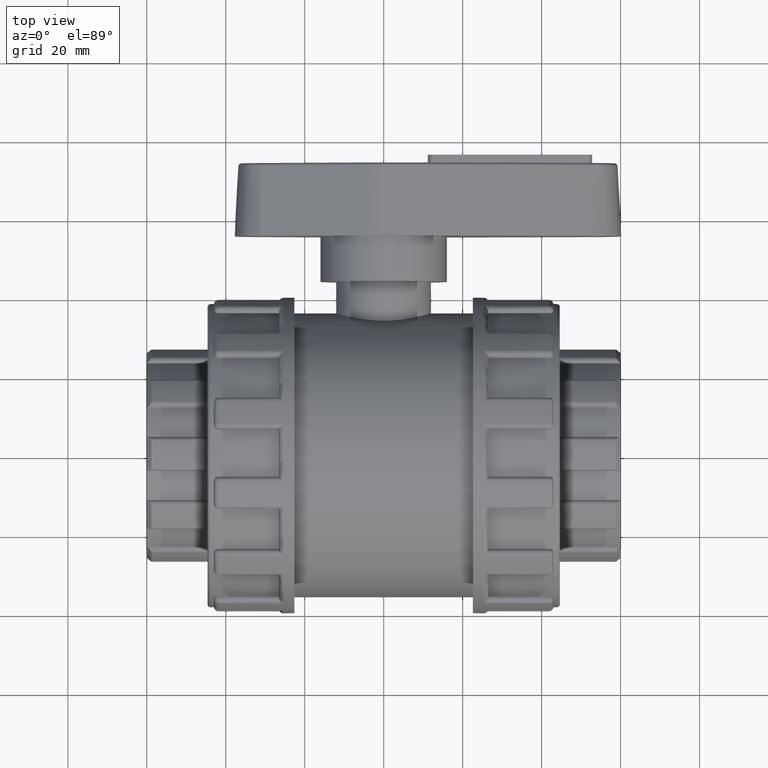
[diagram: clean part render]
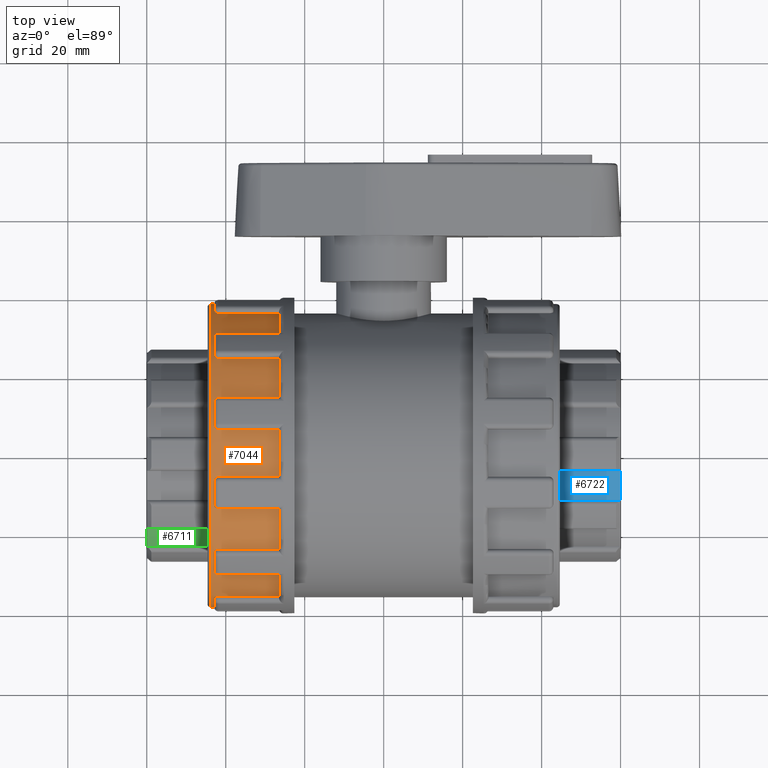
[diagram: same view with three faces highlighted in distinct colors, each labeled with its STEP entity id]
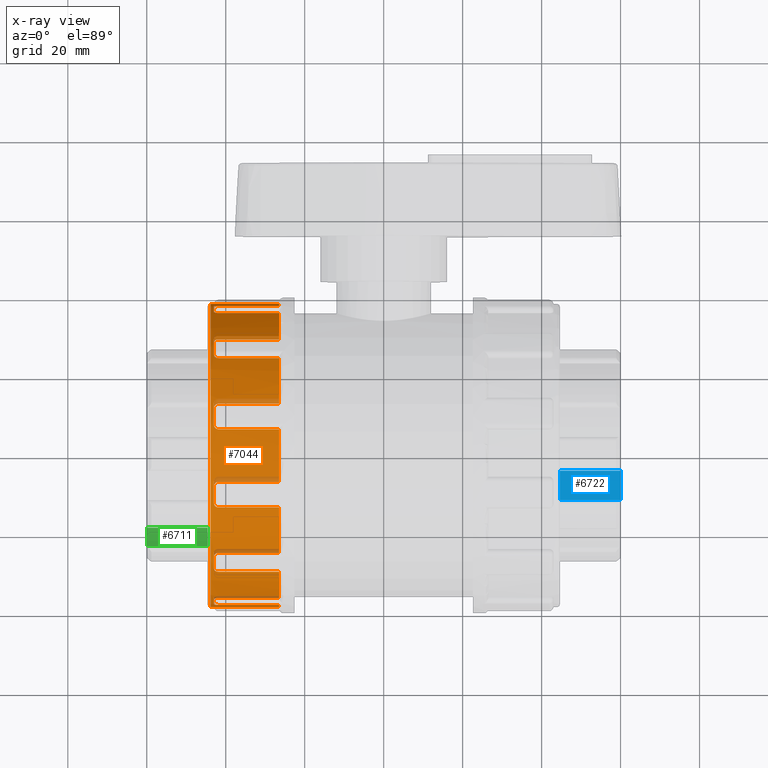
[diagram: x-ray of the same camera — body ghosted, the three highlighted faces saturated]
A machine part, top view with three faces highlighted in distinct colors.
The next image is the same camera in x-ray (body ghosted, the three faces saturated) — at least one of them is partly hidden behind the body in this view.
Their STEP definitions:

[orange] entity #7044 — the highlighted cylindrical surface (bore or boss wall) has radius 38.4 mm, axis along (1, 0, 0).
#104=B_SPLINE_CURVE_WITH_KNOTS('',3,(#11447,#11448,#11449,#11450,#11451,
#11452,#11453,#11454,#11455,#11456),.UNSPECIFIED.,.F.,.F.,(4,2,2,2,4),(0.,
0.0439703450038257,0.0879406900076514,0.132689529319062,0.177438368630472),
 .UNSPECIFIED.);
#107=B_SPLINE_CURVE_WITH_KNOTS('',3,(#11516,#11517,#11518,#11519,#11520,
#11521,#11522,#11523,#11524,#11525),.UNSPECIFIED.,.F.,.F.,(4,2,2,2,4),(-0.177438368630472,
-0.132689529319062,-0.0879406900076515,-0.0439703450038257,0.),
 .UNSPECIFIED.);
#112=B_SPLINE_CURVE_WITH_KNOTS('',3,(#11845,#11846,#11847,#11848,#11849,
#11850,#11851,#11852,#11853,#11854),.UNSPECIFIED.,.F.,.F.,(4,2,2,2,4),(0.,
0.0439703450038258,0.0879406900076515,0.132689529319062,0.177438368630472),
 .UNSPECIFIED.);
#115=B_SPLINE_CURVE_WITH_KNOTS('',3,(#11905,#11906,#11907,#11908,#11909,
#11910,#11911,#11912,#11913,#11914),.UNSPECIFIED.,.F.,.F.,(4,2,2,2,4),(-0.177438368630472,
-0.132689529319062,-0.0879406900076515,-0.0439703450038257,0.),
 .UNSPECIFIED.);
#120=B_SPLINE_CURVE_WITH_KNOTS('',3,(#12021,#12022,#12023,#12024,#12025,
#12026,#12027,#12028,#12029,#12030),.UNSPECIFIED.,.F.,.F.,(4,2,2,2,4),(0.,
0.0439703450038257,0.0879406900076515,0.132689529319062,0.177438368630472),
 .UNSPECIFIED.);
#123=B_SPLINE_CURVE_WITH_KNOTS('',3,(#12081,#12082,#12083,#12084,#12085,
#12086,#12087,#12088,#12089,#12090),.UNSPECIFIED.,.F.,.F.,(4,2,2,2,4),(-0.177438368630472,
-0.132689529319062,-0.0879406900076514,-0.0439703450038257,0.),
 .UNSPECIFIED.);
#128=B_SPLINE_CURVE_WITH_KNOTS('',3,(#12197,#12198,#12199,#12200,#12201,
#12202,#12203,#12204,#12205,#12206),.UNSPECIFIED.,.F.,.F.,(4,2,2,2,4),(0.,
0.0439703450038257,0.0879406900076514,0.132689529319062,0.177438368630472),
 .UNSPECIFIED.);
#131=B_SPLINE_CURVE_WITH_KNOTS('',3,(#12257,#12258,#12259,#12260,#12261,
#12262,#12263,#12264,#12265,#12266),.UNSPECIFIED.,.F.,.F.,(4,2,2,2,4),(-0.177438368630472,
-0.132689529319062,-0.0879406900076515,-0.0439703450038258,0.),
 .UNSPECIFIED.);
#136=B_SPLINE_CURVE_WITH_KNOTS('',3,(#12373,#12374,#12375,#12376,#12377,
#12378,#12379,#12380,#12381,#12382),.UNSPECIFIED.,.F.,.F.,(4,2,2,2,4),(0.,
0.0439703450038257,0.0879406900076515,0.132689529319062,0.177438368630472),
 .UNSPECIFIED.);
#139=B_SPLINE_CURVE_WITH_KNOTS('',3,(#12433,#12434,#12435,#12436,#12437,
#12438,#12439,#12440,#12441,#12442),.UNSPECIFIED.,.F.,.F.,(4,2,2,2,4),(-0.177438368630471,
-0.132689529319061,-0.0879406900076504,-0.0439703450038251,0.),
 .UNSPECIFIED.);
#144=B_SPLINE_CURVE_WITH_KNOTS('',3,(#12549,#12550,#12551,#12552,#12553,
#12554,#12555,#12556,#12557,#12558),.UNSPECIFIED.,.F.,.F.,(4,2,2,2,4),(0.,
0.0439703450038257,0.0879406900076515,0.132689529319062,0.177438368630472),
 .UNSPECIFIED.);
#147=B_SPLINE_CURVE_WITH_KNOTS('',3,(#12609,#12610,#12611,#12612,#12613,
#12614,#12615,#12616,#12617,#12618),.UNSPECIFIED.,.F.,.F.,(4,2,2,2,4),(-0.177438368630472,
-0.132689529319062,-0.0879406900076515,-0.0439703450038258,0.),
 .UNSPECIFIED.);
#152=B_SPLINE_CURVE_WITH_KNOTS('',3,(#12725,#12726,#12727,#12728,#12729,
#12730,#12731,#12732,#12733,#12734),.UNSPECIFIED.,.F.,.F.,(4,2,2,2,4),(0.,
0.0439703450038257,0.0879406900076514,0.132689529319062,0.177438368630472),
 .UNSPECIFIED.);
#155=B_SPLINE_CURVE_WITH_KNOTS('',3,(#12785,#12786,#12787,#12788,#12789,
#12790,#12791,#12792,#12793,#12794),.UNSPECIFIED.,.F.,.F.,(4,2,2,2,4),(-0.177438368630472,
-0.132689529319062,-0.0879406900076515,-0.0439703450038258,0.),
 .UNSPECIFIED.);
#160=B_SPLINE_CURVE_WITH_KNOTS('',3,(#12901,#12902,#12903,#12904,#12905,
#12906,#12907,#12908,#12909,#12910),.UNSPECIFIED.,.F.,.F.,(4,2,2,2,4),(0.,
0.0439703450038257,0.0879406900076514,0.132689529319062,0.177438368630472),
 .UNSPECIFIED.);
#163=B_SPLINE_CURVE_WITH_KNOTS('',3,(#12961,#12962,#12963,#12964,#12965,
#12966,#12967,#12968,#12969,#12970),.UNSPECIFIED.,.F.,.F.,(4,2,2,2,4),(-0.177438368630472,
-0.132689529319062,-0.0879406900076515,-0.0439703450038258,0.),
 .UNSPECIFIED.);
#168=B_SPLINE_CURVE_WITH_KNOTS('',3,(#13077,#13078,#13079,#13080,#13081,
#13082,#13083,#13084,#13085,#13086),.UNSPECIFIED.,.F.,.F.,(4,2,2,2,4),(0.,
0.0439703450038258,0.0879406900076515,0.132689529319062,0.177438368630472),
 .UNSPECIFIED.);
#171=B_SPLINE_CURVE_WITH_KNOTS('',3,(#13137,#13138,#13139,#13140,#13141,
#13142,#13143,#13144,#13145,#13146),.UNSPECIFIED.,.F.,.F.,(4,2,2,2,4),(-0.177438368630472,
-0.132689529319062,-0.0879406900076516,-0.0439703450038258,0.),
 .UNSPECIFIED.);
#176=B_SPLINE_CURVE_WITH_KNOTS('',3,(#13253,#13254,#13255,#13256,#13257,
#13258,#13259,#13260,#13261,#13262),.UNSPECIFIED.,.F.,.F.,(4,2,2,2,4),(0.,
0.0439703450038258,0.0879406900076515,0.132689529319062,0.177438368630472),
 .UNSPECIFIED.);
#179=B_SPLINE_CURVE_WITH_KNOTS('',3,(#13313,#13314,#13315,#13316,#13317,
#13318,#13319,#13320,#13321,#13322),.UNSPECIFIED.,.F.,.F.,(4,2,2,2,4),(-0.177438368630471,
-0.132689529319061,-0.0879406900076507,-0.0439703450038254,0.),
 .UNSPECIFIED.);
#184=B_SPLINE_CURVE_WITH_KNOTS('',3,(#13429,#13430,#13431,#13432,#13433,
#13434,#13435,#13436,#13437,#13438),.UNSPECIFIED.,.F.,.F.,(4,2,2,2,4),(0.,
0.0439703450038258,0.0879406900076515,0.132689529319062,0.177438368630472),
 .UNSPECIFIED.);
#187=B_SPLINE_CURVE_WITH_KNOTS('',3,(#13489,#13490,#13491,#13492,#13493,
#13494,#13495,#13496,#13497,#13498),.UNSPECIFIED.,.F.,.F.,(4,2,2,2,4),(-0.177438368630472,
-0.132689529319062,-0.0879406900076515,-0.0439703450038257,0.),
 .UNSPECIFIED.);
#192=B_SPLINE_CURVE_WITH_KNOTS('',3,(#13822,#13823,#13824,#13825,#13826,
#13827,#13828,#13829,#13830,#13831),.UNSPECIFIED.,.F.,.F.,(4,2,2,2,4),(0.,
0.0439703450038257,0.0879406900076515,0.132689529319062,0.177438368630472),
 .UNSPECIFIED.);
#195=B_SPLINE_CURVE_WITH_KNOTS('',3,(#13882,#13883,#13884,#13885,#13886,
#13887,#13888,#13889,#13890,#13891),.UNSPECIFIED.,.F.,.F.,(4,2,2,2,4),(-0.177438368630472,
-0.132689529319062,-0.0879406900076515,-0.0439703450038258,0.),
 .UNSPECIFIED.);
#218=FACE_BOUND('',#1300,.T.);
#847=FACE_OUTER_BOUND('',#1299,.T.);
#1299=EDGE_LOOP('',(#6339,#6340,#6341,#6342,#6343,#6344,#6345,#6346,#6347,
#6348,#6349,#6350,#6351,#6352,#6353,#6354,#6355,#6356,#6357,#6358,#6359,
#6360,#6361,#6362,#6363,#6364,#6365,#6366,#6367,#6368,#6369,#6370,#6371,
#6372,#6373,#6374,#6375,#6376,#6377,#6378,#6379,#6380,#6381,#6382,#6383,
#6384,#6385,#6386,#6387,#6388,#6389,#6390,#6391,#6392,#6393,#6394,#6395,
#6396,#6397,#6398,#6399,#6400,#6401,#6402,#6403,#6404,#6405,#6406,#6407,
#6408,#6409,#6410));
#1300=EDGE_LOOP('',(#6411));
#1650=LINE('',#13710,#2046);
#1653=LINE('',#13715,#2049);
#1654=LINE('',#13720,#2050);
#1657=LINE('',#13725,#2053);
#1658=LINE('',#13730,#2054);
#1661=LINE('',#13735,#2057);
#1662=LINE('',#13740,#2058);
#1665=LINE('',#13745,#2061);
#1666=LINE('',#13750,#2062);
#1669=LINE('',#13755,#2065);
#1670=LINE('',#13760,#2066);
#1673=LINE('',#13765,#2069);
#1674=LINE('',#13770,#2070);
#1677=LINE('',#13775,#2073);
#1678=LINE('',#13780,#2074);
#1681=LINE('',#13785,#2077);
#1682=LINE('',#13790,#2078);
#1685=LINE('',#13795,#2081);
#1686=LINE('',#13800,#2082);
#1689=LINE('',#13805,#2085);
#1690=LINE('',#13810,#2086);
#1693=LINE('',#13815,#2089);
#1707=LINE('',#13983,#2103);
#1708=LINE('',#13986,#2104);
#2046=VECTOR('',#10052,15.33144);
#2049=VECTOR('',#10057,15.33144);
#2050=VECTOR('',#10064,15.33144);
#2053=VECTOR('',#10069,15.33144);
#2054=VECTOR('',#10076,15.33144);
#2057=VECTOR('',#10081,15.33144);
#2058=VECTOR('',#10088,15.33144);
#2061=VECTOR('',#10093,15.33144);
#2062=VECTOR('',#10100,15.33144);
#2065=VECTOR('',#10105,15.33144);
#2066=VECTOR('',#10112,15.33144);
#2069=VECTOR('',#10117,15.33144);
#2070=VECTOR('',#10124,15.33144);
#2073=VECTOR('',#10129,15.33144);
#2074=VECTOR('',#10136,15.33144);
#2077=VECTOR('',#10141,15.33144);
#2078=VECTOR('',#10148,15.33144);
#2081=VECTOR('',#10153,15.33144);
#2082=VECTOR('',#10160,15.33144);
#2085=VECTOR('',#10165,15.33144);
#2086=VECTOR('',#10172,15.33144);
#2089=VECTOR('',#10177,15.33144);
#2103=VECTOR('',#10261,15.33144);
#2104=VECTOR('',#10264,15.33144);
#2290=CIRCLE('',#7377,38.4);
#2318=CIRCLE('',#7409,38.4);
#2368=CIRCLE('',#7479,38.4);
#2390=CIRCLE('',#7519,38.4);
#2412=CIRCLE('',#7559,38.4);
#2434=CIRCLE('',#7599,38.4);
#2456=CIRCLE('',#7639,38.4);
#2478=CIRCLE('',#7679,38.4);
#2500=CIRCLE('',#7719,38.4);
#2522=CIRCLE('',#7759,38.4);
#2544=CIRCLE('',#7799,38.4);
#2566=CIRCLE('',#7839,38.4);
#2590=CIRCLE('',#7909,38.4);
#2591=CIRCLE('',#7913,38.4);
#2592=CIRCLE('',#7917,38.4);
#2593=CIRCLE('',#7921,38.4);
#2594=CIRCLE('',#7925,38.4);
#2595=CIRCLE('',#7929,38.4);
#2596=CIRCLE('',#7933,38.4);
#2597=CIRCLE('',#7937,38.4);
#2598=CIRCLE('',#7941,38.4);
#2599=CIRCLE('',#7945,38.4);
#2600=CIRCLE('',#7949,38.4);
#2616=CIRCLE('',#7985,38.4);
#2620=CIRCLE('',#7993,38.4);
#2829=VERTEX_POINT('',#11444);
#2830=VERTEX_POINT('',#11446);
#2841=VERTEX_POINT('',#11513);
#2842=VERTEX_POINT('',#11515);
#2844=VERTEX_POINT('',#11534);
#2891=VERTEX_POINT('',#11636);
#2959=VERTEX_POINT('',#11842);
#2960=VERTEX_POINT('',#11844);
#2966=VERTEX_POINT('',#11903);
#2968=VERTEX_POINT('',#11921);
#2983=VERTEX_POINT('',#12018);
#2984=VERTEX_POINT('',#12020);
#2990=VERTEX_POINT('',#12079);
#2992=VERTEX_POINT('',#12097);
#3007=VERTEX_POINT('',#12194);
#3008=VERTEX_POINT('',#12196);
#3014=VERTEX_POINT('',#12255);
#3016=VERTEX_POINT('',#12273);
#3031=VERTEX_POINT('',#12370);
#3032=VERTEX_POINT('',#12372);
#3038=VERTEX_POINT('',#12431);
#3040=VERTEX_POINT('',#12449);
#3055=VERTEX_POINT('',#12546);
#3056=VERTEX_POINT('',#12548);
#3062=VERTEX_POINT('',#12607);
#3064=VERTEX_POINT('',#12625);
#3079=VERTEX_POINT('',#12722);
#3080=VERTEX_POINT('',#12724);
#3086=VERTEX_POINT('',#12783);
#3088=VERTEX_POINT('',#12801);
#3103=VERTEX_POINT('',#12898);
#3104=VERTEX_POINT('',#12900);
#3110=VERTEX_POINT('',#12959);
#3112=VERTEX_POINT('',#12977);
#3127=VERTEX_POINT('',#13074);
#3128=VERTEX_POINT('',#13076);
#3134=VERTEX_POINT('',#13135);
#3136=VERTEX_POINT('',#13153);
#3151=VERTEX_POINT('',#13250);
#3152=VERTEX_POINT('',#13252);
#3158=VERTEX_POINT('',#13311);
#3160=VERTEX_POINT('',#13329);
#3175=VERTEX_POINT('',#13426);
#3176=VERTEX_POINT('',#13428);
#3182=VERTEX_POINT('',#13487);
#3184=VERTEX_POINT('',#13505);
#3219=VERTEX_POINT('',#13709);
#3220=VERTEX_POINT('',#13713);
#3221=VERTEX_POINT('',#13719);
#3222=VERTEX_POINT('',#13723);
#3223=VERTEX_POINT('',#13729);
#3224=VERTEX_POINT('',#13733);
#3225=VERTEX_POINT('',#13739);
#3226=VERTEX_POINT('',#13743);
#3227=VERTEX_POINT('',#13749);
#3228=VERTEX_POINT('',#13753);
#3229=VERTEX_POINT('',#13759);
#3230=VERTEX_POINT('',#13763);
#3231=VERTEX_POINT('',#13769);
#3232=VERTEX_POINT('',#13773);
#3233=VERTEX_POINT('',#13779);
#3234=VERTEX_POINT('',#13783);
#3235=VERTEX_POINT('',#13789);
#3236=VERTEX_POINT('',#13793);
#3237=VERTEX_POINT('',#13799);
#3238=VERTEX_POINT('',#13803);
#3239=VERTEX_POINT('',#13809);
#3240=VERTEX_POINT('',#13813);
#3242=VERTEX_POINT('',#13821);
#3248=VERTEX_POINT('',#13880);
#3259=VERTEX_POINT('',#13981);
#3260=VERTEX_POINT('',#13985);
#3264=VERTEX_POINT('',#14000);
#3593=EDGE_CURVE('',#2829,#2830,#104,.F.);
#3609=EDGE_CURVE('',#2841,#2842,#107,.F.);
#3615=EDGE_CURVE('',#2844,#2829,#2290,.T.);
#3665=EDGE_CURVE('',#2842,#2891,#2318,.T.);
#3745=EDGE_CURVE('',#2959,#2960,#112,.F.);
#3758=EDGE_CURVE('',#2966,#2844,#115,.F.);
#3762=EDGE_CURVE('',#2968,#2959,#2368,.T.);
#3787=EDGE_CURVE('',#2983,#2984,#120,.F.);
#3800=EDGE_CURVE('',#2990,#2968,#123,.F.);
#3804=EDGE_CURVE('',#2992,#2983,#2390,.T.);
#3829=EDGE_CURVE('',#3007,#3008,#128,.F.);
#3842=EDGE_CURVE('',#3014,#2992,#131,.F.);
#3846=EDGE_CURVE('',#3016,#3007,#2412,.T.);
#3871=EDGE_CURVE('',#3031,#3032,#136,.F.);
#3884=EDGE_CURVE('',#3038,#3016,#139,.F.);
#3888=EDGE_CURVE('',#3040,#3031,#2434,.T.);
#3913=EDGE_CURVE('',#3055,#3056,#144,.F.);
#3926=EDGE_CURVE('',#3062,#3040,#147,.F.);
#3930=EDGE_CURVE('',#3064,#3055,#2456,.T.);
#3955=EDGE_CURVE('',#3079,#3080,#152,.F.);
#3968=EDGE_CURVE('',#3086,#3064,#155,.F.);
#3972=EDGE_CURVE('',#3088,#3079,#2478,.T.);
#3997=EDGE_CURVE('',#3103,#3104,#160,.F.);
#4010=EDGE_CURVE('',#3110,#3088,#163,.F.);
#4014=EDGE_CURVE('',#3112,#3103,#2500,.T.);
#4039=EDGE_CURVE('',#3127,#3128,#168,.F.);
#4052=EDGE_CURVE('',#3134,#3112,#171,.F.);
#4056=EDGE_CURVE('',#3136,#3127,#2522,.T.);
#4081=EDGE_CURVE('',#3151,#3152,#176,.F.);
#4094=EDGE_CURVE('',#3158,#3136,#179,.F.);
#4098=EDGE_CURVE('',#3160,#3151,#2544,.T.);
#4123=EDGE_CURVE('',#3175,#3176,#184,.F.);
#4136=EDGE_CURVE('',#3182,#3160,#187,.F.);
#4140=EDGE_CURVE('',#3184,#3175,#2566,.T.);
#4218=EDGE_CURVE('',#2830,#3219,#1650,.T.);
#4221=EDGE_CURVE('',#2841,#3220,#1653,.T.);
#4222=EDGE_CURVE('',#3220,#3219,#2590,.T.);
#4223=EDGE_CURVE('',#2960,#3221,#1654,.T.);
#4226=EDGE_CURVE('',#2966,#3222,#1657,.T.);
#4227=EDGE_CURVE('',#3222,#3221,#2591,.T.);
#4228=EDGE_CURVE('',#2984,#3223,#1658,.T.);
#4231=EDGE_CURVE('',#2990,#3224,#1661,.T.);
#4232=EDGE_CURVE('',#3224,#3223,#2592,.T.);
#4233=EDGE_CURVE('',#3008,#3225,#1662,.T.);
#4236=EDGE_CURVE('',#3014,#3226,#1665,.T.);
#4237=EDGE_CURVE('',#3226,#3225,#2593,.T.);
#4238=EDGE_CURVE('',#3032,#3227,#1666,.T.);
#4241=EDGE_CURVE('',#3038,#3228,#1669,.T.);
#4242=EDGE_CURVE('',#3228,#3227,#2594,.T.);
#4243=EDGE_CURVE('',#3056,#3229,#1670,.T.);
#4246=EDGE_CURVE('',#3062,#3230,#1673,.T.);
#4247=EDGE_CURVE('',#3230,#3229,#2595,.T.);
#4248=EDGE_CURVE('',#3080,#3231,#1674,.T.);
#4251=EDGE_CURVE('',#3086,#3232,#1677,.T.);
#4252=EDGE_CURVE('',#3232,#3231,#2596,.T.);
#4253=EDGE_CURVE('',#3104,#3233,#1678,.T.);
#4256=EDGE_CURVE('',#3110,#3234,#1681,.T.);
#4257=EDGE_CURVE('',#3234,#3233,#2597,.T.);
#4258=EDGE_CURVE('',#3128,#3235,#1682,.T.);
#4261=EDGE_CURVE('',#3134,#3236,#1685,.T.);
#4262=EDGE_CURVE('',#3236,#3235,#2598,.T.);
#4263=EDGE_CURVE('',#3152,#3237,#1686,.T.);
#4266=EDGE_CURVE('',#3158,#3238,#1689,.T.);
#4267=EDGE_CURVE('',#3238,#3237,#2599,.T.);
#4268=EDGE_CURVE('',#3176,#3239,#1690,.T.);
#4271=EDGE_CURVE('',#3182,#3240,#1693,.T.);
#4272=EDGE_CURVE('',#3240,#3239,#2600,.T.);
#4274=EDGE_CURVE('',#2891,#3242,#192,.F.);
#4287=EDGE_CURVE('',#3248,#3184,#195,.F.);
#4309=EDGE_CURVE('',#3248,#3259,#1707,.T.);
#4310=EDGE_CURVE('',#3242,#3260,#1708,.T.);
#4312=EDGE_CURVE('',#3259,#3260,#2616,.T.);
#4316=EDGE_CURVE('',#3264,#3264,#2620,.T.);
#6339=ORIENTED_EDGE('',*,*,#4287,.F.);
#6340=ORIENTED_EDGE('',*,*,#4309,.T.);
#6341=ORIENTED_EDGE('',*,*,#4312,.T.);
#6342=ORIENTED_EDGE('',*,*,#4310,.F.);
#6343=ORIENTED_EDGE('',*,*,#4274,.F.);
#6344=ORIENTED_EDGE('',*,*,#3665,.F.);
#6345=ORIENTED_EDGE('',*,*,#3609,.F.);
#6346=ORIENTED_EDGE('',*,*,#4221,.T.);
#6347=ORIENTED_EDGE('',*,*,#4222,.T.);
#6348=ORIENTED_EDGE('',*,*,#4218,.F.);
#6349=ORIENTED_EDGE('',*,*,#3593,.F.);
#6350=ORIENTED_EDGE('',*,*,#3615,.F.);
#6351=ORIENTED_EDGE('',*,*,#3758,.F.);
#6352=ORIENTED_EDGE('',*,*,#4226,.T.);
#6353=ORIENTED_EDGE('',*,*,#4227,.T.);
#6354=ORIENTED_EDGE('',*,*,#4223,.F.);
#6355=ORIENTED_EDGE('',*,*,#3745,.F.);
#6356=ORIENTED_EDGE('',*,*,#3762,.F.);
#6357=ORIENTED_EDGE('',*,*,#3800,.F.);
#6358=ORIENTED_EDGE('',*,*,#4231,.T.);
#6359=ORIENTED_EDGE('',*,*,#4232,.T.);
#6360=ORIENTED_EDGE('',*,*,#4228,.F.);
#6361=ORIENTED_EDGE('',*,*,#3787,.F.);
#6362=ORIENTED_EDGE('',*,*,#3804,.F.);
#6363=ORIENTED_EDGE('',*,*,#3842,.F.);
#6364=ORIENTED_EDGE('',*,*,#4236,.T.);
#6365=ORIENTED_EDGE('',*,*,#4237,.T.);
#6366=ORIENTED_EDGE('',*,*,#4233,.F.);
#6367=ORIENTED_EDGE('',*,*,#3829,.F.);
#6368=ORIENTED_EDGE('',*,*,#3846,.F.);
#6369=ORIENTED_EDGE('',*,*,#3884,.F.);
#6370=ORIENTED_EDGE('',*,*,#4241,.T.);
#6371=ORIENTED_EDGE('',*,*,#4242,.T.);
#6372=ORIENTED_EDGE('',*,*,#4238,.F.);
#6373=ORIENTED_EDGE('',*,*,#3871,.F.);
#6374=ORIENTED_EDGE('',*,*,#3888,.F.);
#6375=ORIENTED_EDGE('',*,*,#3926,.F.);
#6376=ORIENTED_EDGE('',*,*,#4246,.T.);
#6377=ORIENTED_EDGE('',*,*,#4247,.T.);
#6378=ORIENTED_EDGE('',*,*,#4243,.F.);
#6379=ORIENTED_EDGE('',*,*,#3913,.F.);
#6380=ORIENTED_EDGE('',*,*,#3930,.F.);
#6381=ORIENTED_EDGE('',*,*,#3968,.F.);
#6382=ORIENTED_EDGE('',*,*,#4251,.T.);
#6383=ORIENTED_EDGE('',*,*,#4252,.T.);
#6384=ORIENTED_EDGE('',*,*,#4248,.F.);
#6385=ORIENTED_EDGE('',*,*,#3955,.F.);
#6386=ORIENTED_EDGE('',*,*,#3972,.F.);
#6387=ORIENTED_EDGE('',*,*,#4010,.F.);
#6388=ORIENTED_EDGE('',*,*,#4256,.T.);
#6389=ORIENTED_EDGE('',*,*,#4257,.T.);
#6390=ORIENTED_EDGE('',*,*,#4253,.F.);
#6391=ORIENTED_EDGE('',*,*,#3997,.F.);
#6392=ORIENTED_EDGE('',*,*,#4014,.F.);
#6393=ORIENTED_EDGE('',*,*,#4052,.F.);
#6394=ORIENTED_EDGE('',*,*,#4261,.T.);
#6395=ORIENTED_EDGE('',*,*,#4262,.T.);
#6396=ORIENTED_EDGE('',*,*,#4258,.F.);
#6397=ORIENTED_EDGE('',*,*,#4039,.F.);
#6398=ORIENTED_EDGE('',*,*,#4056,.F.);
#6399=ORIENTED_EDGE('',*,*,#4094,.F.);
#6400=ORIENTED_EDGE('',*,*,#4266,.T.);
#6401=ORIENTED_EDGE('',*,*,#4267,.T.);
#6402=ORIENTED_EDGE('',*,*,#4263,.F.);
#6403=ORIENTED_EDGE('',*,*,#4081,.F.);
#6404=ORIENTED_EDGE('',*,*,#4098,.F.);
#6405=ORIENTED_EDGE('',*,*,#4136,.F.);
#6406=ORIENTED_EDGE('',*,*,#4271,.T.);
#6407=ORIENTED_EDGE('',*,*,#4272,.T.);
#6408=ORIENTED_EDGE('',*,*,#4268,.F.);
#6409=ORIENTED_EDGE('',*,*,#4123,.F.);
#6410=ORIENTED_EDGE('',*,*,#4140,.F.);
#6411=ORIENTED_EDGE('',*,*,#4316,.F.);
#6614=CYLINDRICAL_SURFACE('',#7995,38.4);
#7044=ADVANCED_FACE('',(#847,#218),#6614,.T.);
#7377=AXIS2_PLACEMENT_3D('',#11536,#8773,#8774);
#7409=AXIS2_PLACEMENT_3D('',#11637,#8859,#8860);
#7479=AXIS2_PLACEMENT_3D('',#11923,#9038,#9039);
#7519=AXIS2_PLACEMENT_3D('',#12099,#9130,#9131);
#7559=AXIS2_PLACEMENT_3D('',#12275,#9222,#9223);
#7599=AXIS2_PLACEMENT_3D('',#12451,#9314,#9315);
#7639=AXIS2_PLACEMENT_3D('',#12627,#9406,#9407);
#7679=AXIS2_PLACEMENT_3D('',#12803,#9498,#9499);
#7719=AXIS2_PLACEMENT_3D('',#12979,#9590,#9591);
#7759=AXIS2_PLACEMENT_3D('',#13155,#9682,#9683);
#7799=AXIS2_PLACEMENT_3D('',#13331,#9774,#9775);
#7839=AXIS2_PLACEMENT_3D('',#13507,#9866,#9867);
#7909=AXIS2_PLACEMENT_3D('',#13717,#10060,#10061);
#7913=AXIS2_PLACEMENT_3D('',#13727,#10072,#10073);
#7917=AXIS2_PLACEMENT_3D('',#13737,#10084,#10085);
#7921=AXIS2_PLACEMENT_3D('',#13747,#10096,#10097);
#7925=AXIS2_PLACEMENT_3D('',#13757,#10108,#10109);
#7929=AXIS2_PLACEMENT_3D('',#13767,#10120,#10121);
#7933=AXIS2_PLACEMENT_3D('',#13777,#10132,#10133);
#7937=AXIS2_PLACEMENT_3D('',#13787,#10144,#10145);
#7941=AXIS2_PLACEMENT_3D('',#13797,#10156,#10157);
#7945=AXIS2_PLACEMENT_3D('',#13807,#10168,#10169);
#7949=AXIS2_PLACEMENT_3D('',#13817,#10180,#10181);
#7985=AXIS2_PLACEMENT_3D('',#13989,#10268,#10269);
#7993=AXIS2_PLACEMENT_3D('',#14001,#10284,#10285);
#7995=AXIS2_PLACEMENT_3D('',#14003,#10288,#10289);
#8773=DIRECTION('center_axis',(1.,0.,0.));
#8774=DIRECTION('ref_axis',(0.,0.,-1.));
#8859=DIRECTION('center_axis',(1.,0.,0.));
#8860=DIRECTION('ref_axis',(0.,0.,-1.));
#9038=DIRECTION('center_axis',(1.,0.,0.));
#9039=DIRECTION('ref_axis',(0.,0.,-1.));
#9130=DIRECTION('center_axis',(1.,0.,0.));
#9131=DIRECTION('ref_axis',(0.,0.,-1.));
#9222=DIRECTION('center_axis',(1.,0.,0.));
#9223=DIRECTION('ref_axis',(0.,0.,-1.));
#9314=DIRECTION('center_axis',(1.,0.,0.));
#9315=DIRECTION('ref_axis',(0.,0.,-1.));
#9406=DIRECTION('center_axis',(1.,0.,0.));
#9407=DIRECTION('ref_axis',(0.,0.,-1.));
#9498=DIRECTION('center_axis',(1.,0.,0.));
#9499=DIRECTION('ref_axis',(0.,0.,-1.));
#9590=DIRECTION('center_axis',(1.,0.,0.));
#9591=DIRECTION('ref_axis',(0.,0.,-1.));
#9682=DIRECTION('center_axis',(1.,0.,0.));
#9683=DIRECTION('ref_axis',(0.,0.,-1.));
#9774=DIRECTION('center_axis',(1.,0.,0.));
#9775=DIRECTION('ref_axis',(0.,0.,-1.));
#9866=DIRECTION('center_axis',(1.,0.,0.));
#9867=DIRECTION('ref_axis',(0.,0.,-1.));
#10052=DIRECTION('',(1.,0.,0.));
#10057=DIRECTION('',(1.,0.,0.));
#10060=DIRECTION('center_axis',(-1.,0.,0.));
#10061=DIRECTION('ref_axis',(0.,-0.5,-0.866025403784438));
#10064=DIRECTION('',(1.,0.,0.));
#10069=DIRECTION('',(1.,0.,0.));
#10072=DIRECTION('center_axis',(-1.,0.,0.));
#10073=DIRECTION('ref_axis',(0.,-0.866025403784439,-0.499999999999999));
#10076=DIRECTION('',(1.,0.,0.));
#10081=DIRECTION('',(1.,0.,0.));
#10084=DIRECTION('center_axis',(-1.,0.,0.));
#10085=DIRECTION('ref_axis',(0.,-1.,2.31296463463574E-16));
#10088=DIRECTION('',(1.,0.,0.));
#10093=DIRECTION('',(1.,0.,0.));
#10096=DIRECTION('center_axis',(-1.,0.,0.));
#10097=DIRECTION('ref_axis',(0.,-0.866025403784438,0.5));
#10100=DIRECTION('',(1.,0.,0.));
#10105=DIRECTION('',(1.,0.,0.));
#10108=DIRECTION('center_axis',(-1.,0.,0.));
#10109=DIRECTION('ref_axis',(0.,-0.5,0.866025403784439));
#10112=DIRECTION('',(1.,0.,0.));
#10117=DIRECTION('',(1.,0.,0.));
#10120=DIRECTION('center_axis',(-1.,0.,0.));
#10121=DIRECTION('ref_axis',(0.,1.15648231731787E-16,1.));
#10124=DIRECTION('',(1.,0.,0.));
#10129=DIRECTION('',(1.,0.,0.));
#10132=DIRECTION('center_axis',(-1.,0.,0.));
#10133=DIRECTION('ref_axis',(0.,0.5,0.866025403784438));
#10136=DIRECTION('',(1.,0.,0.));
#10141=DIRECTION('',(1.,0.,0.));
#10144=DIRECTION('center_axis',(-1.,0.,0.));
#10145=DIRECTION('ref_axis',(0.,0.866025403784439,0.5));
#10148=DIRECTION('',(1.,0.,0.));
#10153=DIRECTION('',(1.,0.,0.));
#10156=DIRECTION('center_axis',(-1.,0.,0.));
#10157=DIRECTION('ref_axis',(0.,1.,-5.78241158658936E-17));
#10160=DIRECTION('',(1.,0.,0.));
#10165=DIRECTION('',(1.,0.,0.));
#10168=DIRECTION('center_axis',(-1.,0.,0.));
#10169=DIRECTION('ref_axis',(0.,0.866025403784439,-0.5));
#10172=DIRECTION('',(1.,0.,0.));
#10177=DIRECTION('',(1.,0.,0.));
#10180=DIRECTION('center_axis',(-1.,0.,0.));
#10181=DIRECTION('ref_axis',(0.,0.5,-0.866025403784439));
#10261=DIRECTION('',(1.,0.,0.));
#10264=DIRECTION('',(1.,0.,0.));
#10268=DIRECTION('center_axis',(-1.,0.,0.));
#10269=DIRECTION('ref_axis',(0.,0.,-1.));
#10284=DIRECTION('center_axis',(-1.,0.,0.));
#10285=DIRECTION('ref_axis',(0.,-1.,1.83697019872103E-16));
#10288=DIRECTION('center_axis',(1.,0.,0.));
#10289=DIRECTION('ref_axis',(0.,1.,0.));
#11444=CARTESIAN_POINT('',(-43.,-29.0864838515661,25.0706293728854));
#11446=CARTESIAN_POINT('',(-41.83144,-29.8469176636104,24.1603291778416));
#11447=CARTESIAN_POINT('Ctrl Pts',(-41.83144,-29.8469176636104,24.1603291778416));
#11448=CARTESIAN_POINT('Ctrl Pts',(-41.9780078166794,-29.8469176636104,
24.1603291778416));
#11449=CARTESIAN_POINT('Ctrl Pts',(-42.1342217540879,-29.8283014463617,
24.1833835831124));
#11450=CARTESIAN_POINT('Ctrl Pts',(-42.4212712499644,-29.7524912217716,
24.2765910870926));
#11451=CARTESIAN_POINT('Ctrl Pts',(-42.552107930206,-29.6952605104898,24.3467108713913));
#11452=CARTESIAN_POINT('Ctrl Pts',(-42.7603824318779,-29.5617081969112,
24.5087050310858));
#11453=CARTESIAN_POINT('Ctrl Pts',(-42.850955521736,-29.4760538203061,24.6118624062001));
#11454=CARTESIAN_POINT('Ctrl Pts',(-42.9707539030115,-29.2871504494825,
24.8363511504805));
#11455=CARTESIAN_POINT('Ctrl Pts',(-43.,-29.1838694041046,24.9576444430236));
#11456=CARTESIAN_POINT('Ctrl Pts',(-43.,-29.0864838515661,25.0706293728854));
#11513=CARTESIAN_POINT('',(-41.83144,-35.8469176636104,13.7680243324283));
#11515=CARTESIAN_POINT('',(-43.,-36.2550438515661,12.6543192357795));
#11516=CARTESIAN_POINT('Ctrl Pts',(-43.,-36.2550438515661,12.6543192357795));
#11517=CARTESIAN_POINT('Ctrl Pts',(-43.,-36.2058888083303,12.7951500631702));
#11518=CARTESIAN_POINT('Ctrl Pts',(-42.9707539030115,-36.1524862583683,
12.9452407184685));
#11519=CARTESIAN_POINT('Ctrl Pts',(-42.850955521736,-36.0525249883696,13.2210802086024));
#11520=CARTESIAN_POINT('Ctrl Pts',(-42.7603824318779,-36.0060152692353,
13.3468377622449));
#11521=CARTESIAN_POINT('Ctrl Pts',(-42.552107930206,-35.9325003684645,13.5434945383855));
#11522=CARTESIAN_POINT('Ctrl Pts',(-42.4212712499645,-35.9003902095949,
13.6281176803815));
#11523=CARTESIAN_POINT('Ctrl Pts',(-42.134221754088,-35.8575752556197,13.7403750127332));
#11524=CARTESIAN_POINT('Ctrl Pts',(-41.9780078166794,-35.8469176636104,
13.7680243324283));
#11525=CARTESIAN_POINT('Ctrl Pts',(-41.83144,-35.8469176636104,13.7680243324283));
#11534=CARTESIAN_POINT('',(-43.,-25.0706293728853,29.0864838515662));
#11536=CARTESIAN_POINT('Origin',(-43.,0.,0.));
#11636=CARTESIAN_POINT('',(-43.,-37.7249486086648,7.16856));
#11637=CARTESIAN_POINT('Origin',(-43.,0.,0.));
#11842=CARTESIAN_POINT('',(-43.,-12.6543192357794,36.2550438515661));
#11844=CARTESIAN_POINT('',(-41.83144,-13.7680243324283,35.8469176636104));
#11845=CARTESIAN_POINT('Ctrl Pts',(-41.83144,-13.7680243324283,35.8469176636104));
#11846=CARTESIAN_POINT('Ctrl Pts',(-41.9780078166794,-13.7680243324283,
35.8469176636104));
#11847=CARTESIAN_POINT('Ctrl Pts',(-42.1342217540879,-13.7403750127331,
35.8575752556197));
#11848=CARTESIAN_POINT('Ctrl Pts',(-42.4212712499644,-13.6281176803814,
35.9003902095949));
#11849=CARTESIAN_POINT('Ctrl Pts',(-42.552107930206,-13.5434945383854,35.9325003684646));
#11850=CARTESIAN_POINT('Ctrl Pts',(-42.7603824318779,-13.3468377622449,
36.0060152692354));
#11851=CARTESIAN_POINT('Ctrl Pts',(-42.850955521736,-13.2210802086023,36.0525249883696));
#11852=CARTESIAN_POINT('Ctrl Pts',(-42.9707539030115,-12.9452407184684,
36.1524862583683));
#11853=CARTESIAN_POINT('Ctrl Pts',(-43.,-12.7951500631702,36.2058888083303));
#11854=CARTESIAN_POINT('Ctrl Pts',(-43.,-12.6543192357794,36.2550438515661));
#11903=CARTESIAN_POINT('',(-41.83144,-24.1603291778415,29.8469176636104));
#11905=CARTESIAN_POINT('Ctrl Pts',(-43.,-25.0706293728853,29.0864838515662));
#11906=CARTESIAN_POINT('Ctrl Pts',(-43.,-24.9576444430236,29.1838694041046));
#11907=CARTESIAN_POINT('Ctrl Pts',(-42.9707539030115,-24.8363511504805,
29.2871504494825));
#11908=CARTESIAN_POINT('Ctrl Pts',(-42.850955521736,-24.6118624062001,29.4760538203061));
#11909=CARTESIAN_POINT('Ctrl Pts',(-42.7603824318779,-24.5087050310857,
29.5617081969112));
#11910=CARTESIAN_POINT('Ctrl Pts',(-42.552107930206,-24.3467108713913,29.6952605104899));
#11911=CARTESIAN_POINT('Ctrl Pts',(-42.4212712499644,-24.2765910870926,
29.7524912217717));
#11912=CARTESIAN_POINT('Ctrl Pts',(-42.1342217540879,-24.1833835831123,
29.8283014463617));
#11913=CARTESIAN_POINT('Ctrl Pts',(-41.9780078166794,-24.1603291778415,
29.8469176636104));
#11914=CARTESIAN_POINT('Ctrl Pts',(-41.83144,-24.1603291778415,29.8469176636104));
#11921=CARTESIAN_POINT('',(-43.,-7.16855999999999,37.7249486086648));
#11923=CARTESIAN_POINT('Origin',(-43.,0.,0.));
#12018=CARTESIAN_POINT('',(-43.,7.16856000000001,37.7249486086648));
#12020=CARTESIAN_POINT('',(-41.83144,6.00000000000001,37.9283535102699));
#12021=CARTESIAN_POINT('Ctrl Pts',(-41.83144,6.00000000000001,37.9283535102699));
#12022=CARTESIAN_POINT('Ctrl Pts',(-41.9780078166794,6.00000000000001,37.9283535102699));
#12023=CARTESIAN_POINT('Ctrl Pts',(-42.1342217540879,6.029273809258,37.9237585958455));
#12024=CARTESIAN_POINT('Ctrl Pts',(-42.4212712499644,6.14789898782328,37.9047087674741));
#12025=CARTESIAN_POINT('Ctrl Pts',(-42.552107930206,6.2372398579747,37.8902054097767));
#12026=CARTESIAN_POINT('Ctrl Pts',(-42.7603824318779,6.44430707232415,37.8555427933307));
#12027=CARTESIAN_POINT('Ctrl Pts',(-42.850955521736,6.57647116806347,37.8329426148025));
#12028=CARTESIAN_POINT('Ctrl Pts',(-42.9707539030115,6.86533580888576,37.781591868949));
#12029=CARTESIAN_POINT('Ctrl Pts',(-43.,7.02201940422568,37.7527945061938));
#12030=CARTESIAN_POINT('Ctrl Pts',(-43.,7.16856000000001,37.7249486086648));
#12079=CARTESIAN_POINT('',(-41.83144,-5.99999999999999,37.9283535102699));
#12081=CARTESIAN_POINT('Ctrl Pts',(-43.,-7.16855999999999,37.7249486086648));
#12082=CARTESIAN_POINT('Ctrl Pts',(-43.,-7.02201940422565,37.7527945061938));
#12083=CARTESIAN_POINT('Ctrl Pts',(-42.9707539030115,-6.86533580888574,
37.781591868949));
#12084=CARTESIAN_POINT('Ctrl Pts',(-42.850955521736,-6.57647116806344,37.8329426148025));
#12085=CARTESIAN_POINT('Ctrl Pts',(-42.7603824318779,-6.44430707232413,
37.8555427933307));
#12086=CARTESIAN_POINT('Ctrl Pts',(-42.552107930206,-6.23723985797468,37.8902054097767));
#12087=CARTESIAN_POINT('Ctrl Pts',(-42.4212712499644,-6.14789898782325,
37.9047087674741));
#12088=CARTESIAN_POINT('Ctrl Pts',(-42.1342217540879,-6.02927380925797,
37.9237585958455));
#12089=CARTESIAN_POINT('Ctrl Pts',(-41.9780078166794,-5.99999999999999,
37.9283535102699));
#12090=CARTESIAN_POINT('Ctrl Pts',(-41.83144,-5.99999999999999,37.9283535102699));
#12097=CARTESIAN_POINT('',(-43.,12.6543192357795,36.2550438515661));
#12099=CARTESIAN_POINT('Origin',(-43.,0.,0.));
#12194=CARTESIAN_POINT('',(-43.,25.0706293728854,29.0864838515661));
#12196=CARTESIAN_POINT('',(-41.83144,24.1603291778416,29.8469176636104));
#12197=CARTESIAN_POINT('Ctrl Pts',(-41.83144,24.1603291778416,29.8469176636104));
#12198=CARTESIAN_POINT('Ctrl Pts',(-41.9780078166794,24.1603291778416,29.8469176636104));
#12199=CARTESIAN_POINT('Ctrl Pts',(-42.134221754088,24.1833835831124,29.8283014463617));
#12200=CARTESIAN_POINT('Ctrl Pts',(-42.4212712499645,24.2765910870926,29.7524912217716));
#12201=CARTESIAN_POINT('Ctrl Pts',(-42.552107930206,24.3467108713913,29.6952605104898));
#12202=CARTESIAN_POINT('Ctrl Pts',(-42.7603824318779,24.5087050310858,29.5617081969112));
#12203=CARTESIAN_POINT('Ctrl Pts',(-42.850955521736,24.6118624062001,29.4760538203061));
#12204=CARTESIAN_POINT('Ctrl Pts',(-42.9707539030115,24.8363511504805,29.2871504494825));
#12205=CARTESIAN_POINT('Ctrl Pts',(-43.,24.9576444430236,29.1838694041046));
#12206=CARTESIAN_POINT('Ctrl Pts',(-43.,25.0706293728854,29.0864838515661));
#12255=CARTESIAN_POINT('',(-41.83144,13.7680243324283,35.8469176636104));
#12257=CARTESIAN_POINT('Ctrl Pts',(-43.,12.6543192357795,36.2550438515661));
#12258=CARTESIAN_POINT('Ctrl Pts',(-43.,12.7951500631702,36.2058888083303));
#12259=CARTESIAN_POINT('Ctrl Pts',(-42.9707539030115,12.9452407184685,36.1524862583683));
#12260=CARTESIAN_POINT('Ctrl Pts',(-42.850955521736,13.2210802086024,36.0525249883696));
#12261=CARTESIAN_POINT('Ctrl Pts',(-42.7603824318779,13.3468377622449,36.0060152692353));
#12262=CARTESIAN_POINT('Ctrl Pts',(-42.552107930206,13.5434945383855,35.9325003684645));
#12263=CARTESIAN_POINT('Ctrl Pts',(-42.4212712499645,13.6281176803815,35.9003902095949));
#12264=CARTESIAN_POINT('Ctrl Pts',(-42.134221754088,13.7403750127332,35.8575752556197));
#12265=CARTESIAN_POINT('Ctrl Pts',(-41.9780078166794,13.7680243324283,35.8469176636104));
#12266=CARTESIAN_POINT('Ctrl Pts',(-41.83144,13.7680243324283,35.8469176636104));
#12273=CARTESIAN_POINT('',(-43.,29.0864838515661,25.0706293728854));
#12275=CARTESIAN_POINT('Origin',(-43.,0.,0.));
#12370=CARTESIAN_POINT('',(-43.,36.2550438515661,12.6543192357794));
#12372=CARTESIAN_POINT('',(-41.83144,35.8469176636104,13.7680243324283));
#12373=CARTESIAN_POINT('Ctrl Pts',(-41.83144,35.8469176636104,13.7680243324283));
#12374=CARTESIAN_POINT('Ctrl Pts',(-41.9780078166794,35.8469176636104,13.7680243324283));
#12375=CARTESIAN_POINT('Ctrl Pts',(-42.134221754088,35.8575752556197,13.7403750127331));
#12376=CARTESIAN_POINT('Ctrl Pts',(-42.4212712499645,35.9003902095949,13.6281176803814));
#12377=CARTESIAN_POINT('Ctrl Pts',(-42.552107930206,35.9325003684646,13.5434945383854));
#12378=CARTESIAN_POINT('Ctrl Pts',(-42.7603824318779,36.0060152692354,13.3468377622449));
#12379=CARTESIAN_POINT('Ctrl Pts',(-42.850955521736,36.0525249883696,13.2210802086024));
#12380=CARTESIAN_POINT('Ctrl Pts',(-42.9707539030115,36.1524862583683,12.9452407184684));
#12381=CARTESIAN_POINT('Ctrl Pts',(-43.,36.2058888083303,12.7951500631702));
#12382=CARTESIAN_POINT('Ctrl Pts',(-43.,36.2550438515661,12.6543192357794));
#12431=CARTESIAN_POINT('',(-41.83144,29.8469176636104,24.1603291778415));
#12433=CARTESIAN_POINT('Ctrl Pts',(-43.,29.0864838515661,25.0706293728854));
#12434=CARTESIAN_POINT('Ctrl Pts',(-43.,29.1838694041046,24.9576444430236));
#12435=CARTESIAN_POINT('Ctrl Pts',(-42.9707539030115,29.2871504494825,24.8363511504805));
#12436=CARTESIAN_POINT('Ctrl Pts',(-42.850955521736,29.4760538203061,24.6118624062001));
#12437=CARTESIAN_POINT('Ctrl Pts',(-42.7603824318779,29.5617081969112,24.5087050310857));
#12438=CARTESIAN_POINT('Ctrl Pts',(-42.552107930206,29.6952605104899,24.3467108713913));
#12439=CARTESIAN_POINT('Ctrl Pts',(-42.4212712499644,29.7524912217717,24.2765910870926));
#12440=CARTESIAN_POINT('Ctrl Pts',(-42.1342217540879,29.8283014463617,24.1833835831123));
#12441=CARTESIAN_POINT('Ctrl Pts',(-41.9780078166794,29.8469176636104,24.1603291778416));
#12442=CARTESIAN_POINT('Ctrl Pts',(-41.83144,29.8469176636104,24.1603291778416));
#12449=CARTESIAN_POINT('',(-43.,37.7249486086648,7.16855999999999));
#12451=CARTESIAN_POINT('Origin',(-43.,0.,0.));
#12546=CARTESIAN_POINT('',(-43.,37.7249486086648,-7.16856000000001));
#12548=CARTESIAN_POINT('',(-41.83144,37.9283535102699,-6.00000000000001));
#12549=CARTESIAN_POINT('Ctrl Pts',(-41.83144,37.9283535102699,-6.00000000000001));
#12550=CARTESIAN_POINT('Ctrl Pts',(-41.9780078166794,37.9283535102699,-6.00000000000001));
#12551=CARTESIAN_POINT('Ctrl Pts',(-42.134221754088,37.9237585958455,-6.02927380925799));
#12552=CARTESIAN_POINT('Ctrl Pts',(-42.4212712499645,37.9047087674741,-6.14789898782328));
#12553=CARTESIAN_POINT('Ctrl Pts',(-42.552107930206,37.8902054097767,-6.2372398579747));
#12554=CARTESIAN_POINT('Ctrl Pts',(-42.7603824318779,37.8555427933307,-6.44430707232415));
#12555=CARTESIAN_POINT('Ctrl Pts',(-42.850955521736,37.8329426148025,-6.57647116806346));
#12556=CARTESIAN_POINT('Ctrl Pts',(-42.9707539030115,37.781591868949,-6.86533580888575));
#12557=CARTESIAN_POINT('Ctrl Pts',(-43.,37.7527945061938,-7.02201940422567));
#12558=CARTESIAN_POINT('Ctrl Pts',(-43.,37.7249486086648,-7.16856000000001));
#12607=CARTESIAN_POINT('',(-41.83144,37.9283535102699,5.99999999999999));
#12609=CARTESIAN_POINT('Ctrl Pts',(-43.,37.7249486086648,7.16855999999999));
#12610=CARTESIAN_POINT('Ctrl Pts',(-43.,37.7527945061938,7.02201940422566));
#12611=CARTESIAN_POINT('Ctrl Pts',(-42.9707539030115,37.781591868949,6.86533580888574));
#12612=CARTESIAN_POINT('Ctrl Pts',(-42.850955521736,37.8329426148025,6.57647116806345));
#12613=CARTESIAN_POINT('Ctrl Pts',(-42.7603824318779,37.8555427933307,6.44430707232413));
#12614=CARTESIAN_POINT('Ctrl Pts',(-42.552107930206,37.8902054097767,6.23723985797468));
#12615=CARTESIAN_POINT('Ctrl Pts',(-42.4212712499645,37.9047087674741,6.14789898782326));
#12616=CARTESIAN_POINT('Ctrl Pts',(-42.134221754088,37.9237585958455,6.02927380925798));
#12617=CARTESIAN_POINT('Ctrl Pts',(-41.9780078166794,37.9283535102699,5.99999999999999));
#12618=CARTESIAN_POINT('Ctrl Pts',(-41.83144,37.9283535102699,5.99999999999999));
#12625=CARTESIAN_POINT('',(-43.,36.2550438515661,-12.6543192357794));
#12627=CARTESIAN_POINT('Origin',(-43.,0.,0.));
#12722=CARTESIAN_POINT('',(-43.,29.0864838515661,-25.0706293728854));
#12724=CARTESIAN_POINT('',(-41.83144,29.8469176636104,-24.1603291778416));
#12725=CARTESIAN_POINT('Ctrl Pts',(-41.83144,29.8469176636104,-24.1603291778416));
#12726=CARTESIAN_POINT('Ctrl Pts',(-41.9780078166794,29.8469176636104,-24.1603291778416));
#12727=CARTESIAN_POINT('Ctrl Pts',(-42.134221754088,29.8283014463617,-24.1833835831124));
#12728=CARTESIAN_POINT('Ctrl Pts',(-42.4212712499645,29.7524912217716,-24.2765910870926));
#12729=CARTESIAN_POINT('Ctrl Pts',(-42.552107930206,29.6952605104898,-24.3467108713913));
#12730=CARTESIAN_POINT('Ctrl Pts',(-42.7603824318779,29.5617081969112,-24.5087050310858));
#12731=CARTESIAN_POINT('Ctrl Pts',(-42.850955521736,29.4760538203061,-24.6118624062001));
#12732=CARTESIAN_POINT('Ctrl Pts',(-42.9707539030115,29.2871504494825,-24.8363511504805));
#12733=CARTESIAN_POINT('Ctrl Pts',(-43.,29.1838694041046,-24.9576444430236));
#12734=CARTESIAN_POINT('Ctrl Pts',(-43.,29.0864838515661,-25.0706293728854));
#12783=CARTESIAN_POINT('',(-41.83144,35.8469176636104,-13.7680243324283));
#12785=CARTESIAN_POINT('Ctrl Pts',(-43.,36.2550438515661,-12.6543192357794));
#12786=CARTESIAN_POINT('Ctrl Pts',(-43.,36.2058888083303,-12.7951500631702));
#12787=CARTESIAN_POINT('Ctrl Pts',(-42.9707539030115,36.1524862583682,-12.9452407184684));
#12788=CARTESIAN_POINT('Ctrl Pts',(-42.850955521736,36.0525249883696,-13.2210802086024));
#12789=CARTESIAN_POINT('Ctrl Pts',(-42.7603824318779,36.0060152692353,-13.3468377622449));
#12790=CARTESIAN_POINT('Ctrl Pts',(-42.552107930206,35.9325003684645,-13.5434945383855));
#12791=CARTESIAN_POINT('Ctrl Pts',(-42.4212712499645,35.9003902095949,-13.6281176803815));
#12792=CARTESIAN_POINT('Ctrl Pts',(-42.134221754088,35.8575752556197,-13.7403750127332));
#12793=CARTESIAN_POINT('Ctrl Pts',(-41.9780078166794,35.8469176636104,-13.7680243324283));
#12794=CARTESIAN_POINT('Ctrl Pts',(-41.83144,35.8469176636104,-13.7680243324283));
#12801=CARTESIAN_POINT('',(-43.,25.0706293728854,-29.0864838515661));
#12803=CARTESIAN_POINT('Origin',(-43.,0.,0.));
#12898=CARTESIAN_POINT('',(-43.,12.6543192357794,-36.2550438515661));
#12900=CARTESIAN_POINT('',(-41.83144,13.7680243324283,-35.8469176636104));
#12901=CARTESIAN_POINT('Ctrl Pts',(-41.83144,13.7680243324283,-35.8469176636104));
#12902=CARTESIAN_POINT('Ctrl Pts',(-41.9780078166794,13.7680243324283,-35.8469176636104));
#12903=CARTESIAN_POINT('Ctrl Pts',(-42.134221754088,13.7403750127332,-35.8575752556197));
#12904=CARTESIAN_POINT('Ctrl Pts',(-42.4212712499645,13.6281176803814,-35.9003902095949));
#12905=CARTESIAN_POINT('Ctrl Pts',(-42.552107930206,13.5434945383854,-35.9325003684645));
#12906=CARTESIAN_POINT('Ctrl Pts',(-42.7603824318779,13.3468377622449,-36.0060152692353));
#12907=CARTESIAN_POINT('Ctrl Pts',(-42.850955521736,13.2210802086024,-36.0525249883696));
#12908=CARTESIAN_POINT('Ctrl Pts',(-42.9707539030115,12.9452407184684,-36.1524862583683));
#12909=CARTESIAN_POINT('Ctrl Pts',(-43.,12.7951500631702,-36.2058888083303));
#12910=CARTESIAN_POINT('Ctrl Pts',(-43.,12.6543192357794,-36.2550438515661));
#12959=CARTESIAN_POINT('',(-41.83144,24.1603291778415,-29.8469176636104));
#12961=CARTESIAN_POINT('Ctrl Pts',(-43.,25.0706293728854,-29.0864838515661));
#12962=CARTESIAN_POINT('Ctrl Pts',(-43.,24.9576444430236,-29.1838694041046));
#12963=CARTESIAN_POINT('Ctrl Pts',(-42.9707539030115,24.8363511504805,-29.2871504494825));
#12964=CARTESIAN_POINT('Ctrl Pts',(-42.850955521736,24.6118624062001,-29.4760538203061));
#12965=CARTESIAN_POINT('Ctrl Pts',(-42.7603824318779,24.5087050310857,-29.5617081969112));
#12966=CARTESIAN_POINT('Ctrl Pts',(-42.552107930206,24.3467108713913,-29.6952605104899));
#12967=CARTESIAN_POINT('Ctrl Pts',(-42.4212712499644,24.2765910870926,-29.7524912217717));
#12968=CARTESIAN_POINT('Ctrl Pts',(-42.1342217540879,24.1833835831123,-29.8283014463617));
#12969=CARTESIAN_POINT('Ctrl Pts',(-41.9780078166794,24.1603291778415,-29.8469176636104));
#12970=CARTESIAN_POINT('Ctrl Pts',(-41.83144,24.1603291778415,-29.8469176636104));
#12977=CARTESIAN_POINT('',(-43.,7.16855999999999,-37.7249486086648));
#12979=CARTESIAN_POINT('Origin',(-43.,0.,0.));
#13074=CARTESIAN_POINT('',(-43.,-7.16856000000001,-37.7249486086648));
#13076=CARTESIAN_POINT('',(-41.83144,-6.00000000000001,-37.9283535102699));
#13077=CARTESIAN_POINT('Ctrl Pts',(-41.83144,-6.00000000000001,-37.9283535102699));
#13078=CARTESIAN_POINT('Ctrl Pts',(-41.9780078166794,-6.00000000000001,
-37.9283535102699));
#13079=CARTESIAN_POINT('Ctrl Pts',(-42.134221754088,-6.029273809258,-37.9237585958455));
#13080=CARTESIAN_POINT('Ctrl Pts',(-42.4212712499645,-6.14789898782328,
-37.9047087674741));
#13081=CARTESIAN_POINT('Ctrl Pts',(-42.552107930206,-6.2372398579747,-37.8902054097767));
#13082=CARTESIAN_POINT('Ctrl Pts',(-42.7603824318779,-6.44430707232415,
-37.8555427933307));
#13083=CARTESIAN_POINT('Ctrl Pts',(-42.850955521736,-6.57647116806346,-37.8329426148025));
#13084=CARTESIAN_POINT('Ctrl Pts',(-42.9707539030115,-6.86533580888576,
-37.781591868949));
#13085=CARTESIAN_POINT('Ctrl Pts',(-43.,-7.02201940422567,-37.7527945061938));
#13086=CARTESIAN_POINT('Ctrl Pts',(-43.,-7.16856000000001,-37.7249486086648));
#13135=CARTESIAN_POINT('',(-41.83144,5.99999999999999,-37.9283535102699));
#13137=CARTESIAN_POINT('Ctrl Pts',(-43.,7.16855999999999,-37.7249486086648));
#13138=CARTESIAN_POINT('Ctrl Pts',(-43.,7.02201940422566,-37.7527945061938));
#13139=CARTESIAN_POINT('Ctrl Pts',(-42.9707539030115,6.86533580888574,-37.781591868949));
#13140=CARTESIAN_POINT('Ctrl Pts',(-42.850955521736,6.57647116806345,-37.8329426148025));
#13141=CARTESIAN_POINT('Ctrl Pts',(-42.7603824318779,6.44430707232414,-37.8555427933307));
#13142=CARTESIAN_POINT('Ctrl Pts',(-42.552107930206,6.23723985797468,-37.8902054097767));
#13143=CARTESIAN_POINT('Ctrl Pts',(-42.4212712499644,6.14789898782326,-37.9047087674741));
#13144=CARTESIAN_POINT('Ctrl Pts',(-42.1342217540879,6.02927380925798,-37.9237585958455));
#13145=CARTESIAN_POINT('Ctrl Pts',(-41.9780078166794,5.99999999999999,-37.9283535102699));
#13146=CARTESIAN_POINT('Ctrl Pts',(-41.83144,5.99999999999999,-37.9283535102699));
#13153=CARTESIAN_POINT('',(-43.,-12.6543192357794,-36.2550438515661));
#13155=CARTESIAN_POINT('Origin',(-43.,0.,0.));
#13250=CARTESIAN_POINT('',(-43.,-25.0706293728854,-29.0864838515661));
#13252=CARTESIAN_POINT('',(-41.83144,-24.1603291778416,-29.8469176636104));
#13253=CARTESIAN_POINT('Ctrl Pts',(-41.83144,-24.1603291778416,-29.8469176636104));
#13254=CARTESIAN_POINT('Ctrl Pts',(-41.9780078166794,-24.1603291778416,
-29.8469176636104));
#13255=CARTESIAN_POINT('Ctrl Pts',(-42.1342217540879,-24.1833835831124,
-29.8283014463617));
#13256=CARTESIAN_POINT('Ctrl Pts',(-42.4212712499644,-24.2765910870926,
-29.7524912217717));
#13257=CARTESIAN_POINT('Ctrl Pts',(-42.552107930206,-24.3467108713913,-29.6952605104898));
#13258=CARTESIAN_POINT('Ctrl Pts',(-42.7603824318779,-24.5087050310858,
-29.5617081969112));
#13259=CARTESIAN_POINT('Ctrl Pts',(-42.850955521736,-24.6118624062001,-29.4760538203061));
#13260=CARTESIAN_POINT('Ctrl Pts',(-42.9707539030115,-24.8363511504805,
-29.2871504494825));
#13261=CARTESIAN_POINT('Ctrl Pts',(-43.,-24.9576444430236,-29.1838694041046));
#13262=CARTESIAN_POINT('Ctrl Pts',(-43.,-25.0706293728854,-29.0864838515661));
#13311=CARTESIAN_POINT('',(-41.83144,-13.7680243324283,-35.8469176636104));
#13313=CARTESIAN_POINT('Ctrl Pts',(-43.,-12.6543192357794,-36.2550438515661));
#13314=CARTESIAN_POINT('Ctrl Pts',(-43.,-12.7951500631702,-36.2058888083303));
#13315=CARTESIAN_POINT('Ctrl Pts',(-42.9707539030115,-12.9452407184684,
-36.1524862583683));
#13316=CARTESIAN_POINT('Ctrl Pts',(-42.850955521736,-13.2210802086024,-36.0525249883696));
#13317=CARTESIAN_POINT('Ctrl Pts',(-42.7603824318779,-13.3468377622449,
-36.0060152692353));
#13318=CARTESIAN_POINT('Ctrl Pts',(-42.552107930206,-13.5434945383854,-35.9325003684645));
#13319=CARTESIAN_POINT('Ctrl Pts',(-42.4212712499645,-13.6281176803815,
-35.9003902095949));
#13320=CARTESIAN_POINT('Ctrl Pts',(-42.134221754088,-13.7403750127332,-35.8575752556197));
#13321=CARTESIAN_POINT('Ctrl Pts',(-41.9780078166794,-13.7680243324283,
-35.8469176636104));
#13322=CARTESIAN_POINT('Ctrl Pts',(-41.83144,-13.7680243324283,-35.8469176636104));
#13329=CARTESIAN_POINT('',(-43.,-29.0864838515661,-25.0706293728854));
#13331=CARTESIAN_POINT('Origin',(-43.,0.,0.));
#13426=CARTESIAN_POINT('',(-43.,-36.2550438515661,-12.6543192357794));
#13428=CARTESIAN_POINT('',(-41.83144,-35.8469176636104,-13.7680243324283));
#13429=CARTESIAN_POINT('Ctrl Pts',(-41.83144,-35.8469176636104,-13.7680243324283));
#13430=CARTESIAN_POINT('Ctrl Pts',(-41.9780078166794,-35.8469176636104,
-13.7680243324283));
#13431=CARTESIAN_POINT('Ctrl Pts',(-42.1342217540879,-35.8575752556197,
-13.7403750127332));
#13432=CARTESIAN_POINT('Ctrl Pts',(-42.4212712499644,-35.9003902095949,
-13.6281176803814));
#13433=CARTESIAN_POINT('Ctrl Pts',(-42.552107930206,-35.9325003684645,-13.5434945383854));
#13434=CARTESIAN_POINT('Ctrl Pts',(-42.7603824318779,-36.0060152692353,
-13.3468377622449));
#13435=CARTESIAN_POINT('Ctrl Pts',(-42.850955521736,-36.0525249883696,-13.2210802086024));
#13436=CARTESIAN_POINT('Ctrl Pts',(-42.9707539030115,-36.1524862583683,
-12.9452407184684));
#13437=CARTESIAN_POINT('Ctrl Pts',(-43.,-36.2058888083303,-12.7951500631702));
#13438=CARTESIAN_POINT('Ctrl Pts',(-43.,-36.2550438515661,-12.6543192357794));
#13487=CARTESIAN_POINT('',(-41.83144,-29.8469176636104,-24.1603291778416));
#13489=CARTESIAN_POINT('Ctrl Pts',(-43.,-29.0864838515661,-25.0706293728854));
#13490=CARTESIAN_POINT('Ctrl Pts',(-43.,-29.1838694041046,-24.9576444430236));
#13491=CARTESIAN_POINT('Ctrl Pts',(-42.9707539030115,-29.2871504494825,
-24.8363511504805));
#13492=CARTESIAN_POINT('Ctrl Pts',(-42.850955521736,-29.4760538203061,-24.6118624062001));
#13493=CARTESIAN_POINT('Ctrl Pts',(-42.7603824318779,-29.5617081969112,
-24.5087050310857));
#13494=CARTESIAN_POINT('Ctrl Pts',(-42.552107930206,-29.6952605104899,-24.3467108713913));
#13495=CARTESIAN_POINT('Ctrl Pts',(-42.4212712499644,-29.7524912217717,
-24.2765910870926));
#13496=CARTESIAN_POINT('Ctrl Pts',(-42.1342217540879,-29.8283014463617,
-24.1833835831123));
#13497=CARTESIAN_POINT('Ctrl Pts',(-41.9780078166794,-29.8469176636104,
-24.1603291778416));
#13498=CARTESIAN_POINT('Ctrl Pts',(-41.83144,-29.8469176636104,-24.1603291778416));
#13505=CARTESIAN_POINT('',(-43.,-37.7249486086648,-7.16855999999999));
#13507=CARTESIAN_POINT('Origin',(-43.,0.,0.));
#13709=CARTESIAN_POINT('',(-26.5,-29.8469176636104,24.1603291778416));
#13710=CARTESIAN_POINT('',(-43.,-29.8469176636104,24.1603291778416));
#13713=CARTESIAN_POINT('',(-26.5,-35.8469176636104,13.7680243324283));
#13715=CARTESIAN_POINT('',(-43.,-35.8469176636104,13.7680243324283));
#13717=CARTESIAN_POINT('Origin',(-26.5,0.,0.));
#13719=CARTESIAN_POINT('',(-26.5,-13.7680243324283,35.8469176636104));
#13720=CARTESIAN_POINT('',(-43.,-13.7680243324283,35.8469176636104));
#13723=CARTESIAN_POINT('',(-26.5,-24.1603291778415,29.8469176636104));
#13725=CARTESIAN_POINT('',(-43.,-24.1603291778415,29.8469176636104));
#13727=CARTESIAN_POINT('Origin',(-26.5,0.,0.));
#13729=CARTESIAN_POINT('',(-26.5,6.00000000000001,37.9283535102699));
#13730=CARTESIAN_POINT('',(-43.,6.00000000000001,37.9283535102699));
#13733=CARTESIAN_POINT('',(-26.5,-5.99999999999999,37.9283535102699));
#13735=CARTESIAN_POINT('',(-43.,-5.99999999999999,37.9283535102699));
#13737=CARTESIAN_POINT('Origin',(-26.5,0.,0.));
#13739=CARTESIAN_POINT('',(-26.5,24.1603291778416,29.8469176636104));
#13740=CARTESIAN_POINT('',(-43.,24.1603291778416,29.8469176636104));
#13743=CARTESIAN_POINT('',(-26.5,13.7680243324283,35.8469176636104));
#13745=CARTESIAN_POINT('',(-43.,13.7680243324283,35.8469176636104));
#13747=CARTESIAN_POINT('Origin',(-26.5,0.,0.));
#13749=CARTESIAN_POINT('',(-26.5,35.8469176636104,13.7680243324283));
#13750=CARTESIAN_POINT('',(-43.,35.8469176636104,13.7680243324283));
#13753=CARTESIAN_POINT('',(-26.5,29.8469176636104,24.1603291778415));
#13755=CARTESIAN_POINT('',(-43.,29.8469176636104,24.1603291778415));
#13757=CARTESIAN_POINT('Origin',(-26.5,0.,0.));
#13759=CARTESIAN_POINT('',(-26.5,37.9283535102699,-6.00000000000001));
#13760=CARTESIAN_POINT('',(-43.,37.9283535102699,-6.00000000000001));
#13763=CARTESIAN_POINT('',(-26.5,37.9283535102699,5.99999999999999));
#13765=CARTESIAN_POINT('',(-43.,37.9283535102699,5.99999999999999));
#13767=CARTESIAN_POINT('Origin',(-26.5,0.,0.));
#13769=CARTESIAN_POINT('',(-26.5,29.8469176636104,-24.1603291778416));
#13770=CARTESIAN_POINT('',(-43.,29.8469176636104,-24.1603291778416));
#13773=CARTESIAN_POINT('',(-26.5,35.8469176636104,-13.7680243324283));
#13775=CARTESIAN_POINT('',(-43.,35.8469176636104,-13.7680243324283));
#13777=CARTESIAN_POINT('Origin',(-26.5,0.,0.));
#13779=CARTESIAN_POINT('',(-26.5,13.7680243324283,-35.8469176636104));
#13780=CARTESIAN_POINT('',(-43.,13.7680243324283,-35.8469176636104));
#13783=CARTESIAN_POINT('',(-26.5,24.1603291778415,-29.8469176636104));
#13785=CARTESIAN_POINT('',(-43.,24.1603291778415,-29.8469176636104));
#13787=CARTESIAN_POINT('Origin',(-26.5,0.,0.));
#13789=CARTESIAN_POINT('',(-26.5,-6.00000000000001,-37.9283535102699));
#13790=CARTESIAN_POINT('',(-43.,-6.00000000000001,-37.9283535102699));
#13793=CARTESIAN_POINT('',(-26.5,5.99999999999999,-37.9283535102699));
#13795=CARTESIAN_POINT('',(-43.,5.99999999999999,-37.9283535102699));
#13797=CARTESIAN_POINT('Origin',(-26.5,0.,0.));
#13799=CARTESIAN_POINT('',(-26.5,-24.1603291778416,-29.8469176636104));
#13800=CARTESIAN_POINT('',(-43.,-24.1603291778416,-29.8469176636104));
#13803=CARTESIAN_POINT('',(-26.5,-13.7680243324283,-35.8469176636104));
#13805=CARTESIAN_POINT('',(-43.,-13.7680243324283,-35.8469176636104));
#13807=CARTESIAN_POINT('Origin',(-26.5,0.,0.));
#13809=CARTESIAN_POINT('',(-26.5,-35.8469176636104,-13.7680243324283));
#13810=CARTESIAN_POINT('',(-43.,-35.8469176636104,-13.7680243324283));
#13813=CARTESIAN_POINT('',(-26.5,-29.8469176636104,-24.1603291778416));
#13815=CARTESIAN_POINT('',(-43.,-29.8469176636104,-24.1603291778416));
#13817=CARTESIAN_POINT('Origin',(-26.5,0.,0.));
#13821=CARTESIAN_POINT('',(-41.83144,-37.9283535102699,6.00000000000001));
#13822=CARTESIAN_POINT('Ctrl Pts',(-41.83144,-37.9283535102699,6.00000000000001));
#13823=CARTESIAN_POINT('Ctrl Pts',(-41.9780078166794,-37.9283535102699,
6.00000000000001));
#13824=CARTESIAN_POINT('Ctrl Pts',(-42.134221754088,-37.9237585958455,6.02927380925799));
#13825=CARTESIAN_POINT('Ctrl Pts',(-42.4212712499645,-37.9047087674741,
6.14789898782327));
#13826=CARTESIAN_POINT('Ctrl Pts',(-42.552107930206,-37.8902054097767,6.2372398579747));
#13827=CARTESIAN_POINT('Ctrl Pts',(-42.7603824318779,-37.8555427933307,
6.44430707232415));
#13828=CARTESIAN_POINT('Ctrl Pts',(-42.850955521736,-37.8329426148025,6.57647116806346));
#13829=CARTESIAN_POINT('Ctrl Pts',(-42.9707539030115,-37.781591868949,6.86533580888575));
#13830=CARTESIAN_POINT('Ctrl Pts',(-43.,-37.7527945061938,7.02201940422567));
#13831=CARTESIAN_POINT('Ctrl Pts',(-43.,-37.7249486086648,7.16856));
#13880=CARTESIAN_POINT('',(-41.83144,-37.9283535102699,-5.99999999999999));
#13882=CARTESIAN_POINT('Ctrl Pts',(-43.,-37.7249486086648,-7.16855999999999));
#13883=CARTESIAN_POINT('Ctrl Pts',(-43.,-37.7527945061938,-7.02201940422566));
#13884=CARTESIAN_POINT('Ctrl Pts',(-42.9707539030115,-37.781591868949,-6.86533580888575));
#13885=CARTESIAN_POINT('Ctrl Pts',(-42.850955521736,-37.8329426148025,-6.57647116806345));
#13886=CARTESIAN_POINT('Ctrl Pts',(-42.7603824318779,-37.8555427933307,
-6.44430707232414));
#13887=CARTESIAN_POINT('Ctrl Pts',(-42.552107930206,-37.8902054097767,-6.23723985797469));
#13888=CARTESIAN_POINT('Ctrl Pts',(-42.4212712499645,-37.9047087674741,
-6.14789898782326));
#13889=CARTESIAN_POINT('Ctrl Pts',(-42.134221754088,-37.9237585958455,-6.02927380925798));
#13890=CARTESIAN_POINT('Ctrl Pts',(-41.9780078166794,-37.9283535102699,
-5.99999999999999));
#13891=CARTESIAN_POINT('Ctrl Pts',(-41.83144,-37.9283535102699,-5.99999999999999));
#13981=CARTESIAN_POINT('',(-26.5,-37.9283535102699,-5.99999999999999));
#13983=CARTESIAN_POINT('',(-43.,-37.9283535102699,-5.99999999999999));
#13985=CARTESIAN_POINT('',(-26.5,-37.9283535102699,6.00000000000001));
#13986=CARTESIAN_POINT('',(-43.,-37.9283535102699,6.00000000000001));
#13989=CARTESIAN_POINT('Origin',(-26.5,0.,0.));
#14000=CARTESIAN_POINT('',(-43.82096,38.4,-1.17566092718146E-14));
#14001=CARTESIAN_POINT('Origin',(-43.82096,0.,0.));
#14003=CARTESIAN_POINT('Origin',(-43.8,0.,0.));

[blue] entity #6722 — the highlighted cylindrical surface (partial cylindrical patch) has radius 26.0978 mm, axis along (-1, 0, 0).
#525=FACE_OUTER_BOUND('',#963,.T.);
#963=EDGE_LOOP('',(#4750,#4751,#4752,#4753));
#1397=LINE('',#11054,#1793);
#1399=LINE('',#11074,#1795);
#1793=VECTOR('',#8415,15.4);
#1795=VECTOR('',#8421,15.4);
#2248=CIRCLE('',#7301,26.09784);
#2249=CIRCLE('',#7302,26.09784);
#2771=VERTEX_POINT('',#11036);
#2774=VERTEX_POINT('',#11052);
#2775=VERTEX_POINT('',#11056);
#2778=VERTEX_POINT('',#11061);
#3470=EDGE_CURVE('',#2771,#2774,#1397,.T.);
#3474=EDGE_CURVE('',#2778,#2775,#1399,.T.);
#3552=EDGE_CURVE('',#2778,#2771,#2248,.T.);
#3553=EDGE_CURVE('',#2774,#2775,#2249,.T.);
#4750=ORIENTED_EDGE('',*,*,#3552,.T.);
#4751=ORIENTED_EDGE('',*,*,#3470,.T.);
#4752=ORIENTED_EDGE('',*,*,#3553,.T.);
#4753=ORIENTED_EDGE('',*,*,#3474,.F.);
#6502=CYLINDRICAL_SURFACE('',#7300,26.09784);
#6722=ADVANCED_FACE('',(#525),#6502,.T.);
#7300=AXIS2_PLACEMENT_3D('',#11305,#8605,#8606);
#7301=AXIS2_PLACEMENT_3D('',#11306,#8607,#8608);
#7302=AXIS2_PLACEMENT_3D('',#11307,#8609,#8610);
#8415=DIRECTION('',(-1.,0.,0.));
#8421=DIRECTION('',(-1.,0.,0.));
#8605=DIRECTION('center_axis',(-1.,0.,0.));
#8606=DIRECTION('ref_axis',(0.,-0.951056516295154,-0.309016994374947));
#8607=DIRECTION('center_axis',(-1.,0.,0.));
#8608=DIRECTION('ref_axis',(0.,-1.,0.));
#8609=DIRECTION('center_axis',(1.,0.,0.));
#8610=DIRECTION('ref_axis',(0.,-0.951056516295154,-0.309016994374947));
#11036=CARTESIAN_POINT('',(60.,-4.26978773176674,25.7461873952485));
#11052=CARTESIAN_POINT('',(44.6,-4.26978773176674,25.7461873952485));
#11054=CARTESIAN_POINT('',(60.,-4.26978773176674,25.7461873952485));
#11056=CARTESIAN_POINT('',(44.6,-11.6788984163125,23.3388214022699));
#11061=CARTESIAN_POINT('',(60.,-11.6788984163125,23.3388214022699));
#11074=CARTESIAN_POINT('',(60.,-11.6788984163125,23.3388214022699));
#11305=CARTESIAN_POINT('Origin',(60.,0.,0.));
#11306=CARTESIAN_POINT('Origin',(60.,0.,0.));
#11307=CARTESIAN_POINT('Origin',(44.6,0.,0.));

[green] entity #6711 — the highlighted cylindrical surface (partial cylindrical patch) has radius 26.0978 mm, axis along (-1, 0, 0).
#514=FACE_OUTER_BOUND('',#952,.T.);
#952=EDGE_LOOP('',(#4706,#4707,#4708,#4709));
#1385=LINE('',#10921,#1781);
#1387=LINE('',#10946,#1783);
#1781=VECTOR('',#8353,15.4);
#1783=VECTOR('',#8369,15.4);
#2227=CIRCLE('',#7269,26.09784);
#2228=CIRCLE('',#7270,26.09784);
#2736=VERTEX_POINT('',#10837);
#2747=VERTEX_POINT('',#10903);
#2750=VERTEX_POINT('',#10908);
#2754=VERTEX_POINT('',#10944);
#3438=EDGE_CURVE('',#2750,#2747,#1385,.T.);
#3445=EDGE_CURVE('',#2736,#2754,#1387,.T.);
#3530=EDGE_CURVE('',#2750,#2736,#2227,.T.);
#3531=EDGE_CURVE('',#2747,#2754,#2228,.T.);
#4706=ORIENTED_EDGE('',*,*,#3530,.T.);
#4707=ORIENTED_EDGE('',*,*,#3445,.T.);
#4708=ORIENTED_EDGE('',*,*,#3531,.F.);
#4709=ORIENTED_EDGE('',*,*,#3438,.F.);
#6491=CYLINDRICAL_SURFACE('',#7268,26.09784);
#6711=ADVANCED_FACE('',(#514),#6491,.T.);
#7268=AXIS2_PLACEMENT_3D('',#11271,#8540,#8541);
#7269=AXIS2_PLACEMENT_3D('',#11272,#8542,#8543);
#7270=AXIS2_PLACEMENT_3D('',#11273,#8544,#8545);
#8353=DIRECTION('',(1.,0.,0.));
#8369=DIRECTION('',(1.,0.,0.));
#8540=DIRECTION('center_axis',(-1.,0.,0.));
#8541=DIRECTION('ref_axis',(0.,-0.587785252292473,-0.809016994374947));
#8542=DIRECTION('center_axis',(1.,0.,0.));
#8543=DIRECTION('ref_axis',(0.,-1.,0.));
#8544=DIRECTION('center_axis',(1.,0.,0.));
#8545=DIRECTION('ref_axis',(0.,-0.587785252292473,-0.809016994374947));
#10837=CARTESIAN_POINT('',(-60.,-23.1666423205177,12.0168188909877));
#10903=CARTESIAN_POINT('',(-44.6,-18.5875600910584,18.3193848839663));
#10908=CARTESIAN_POINT('',(-60.,-18.5875600910584,18.3193848839663));
#10921=CARTESIAN_POINT('',(-60.,-18.5875600910584,18.3193848839663));
#10944=CARTESIAN_POINT('',(-44.6,-23.1666423205177,12.0168188909877));
#10946=CARTESIAN_POINT('',(-60.,-23.1666423205177,12.0168188909877));
#11271=CARTESIAN_POINT('Origin',(-60.,0.,0.));
#11272=CARTESIAN_POINT('Origin',(-60.,0.,0.));
#11273=CARTESIAN_POINT('Origin',(-44.6,0.,0.));